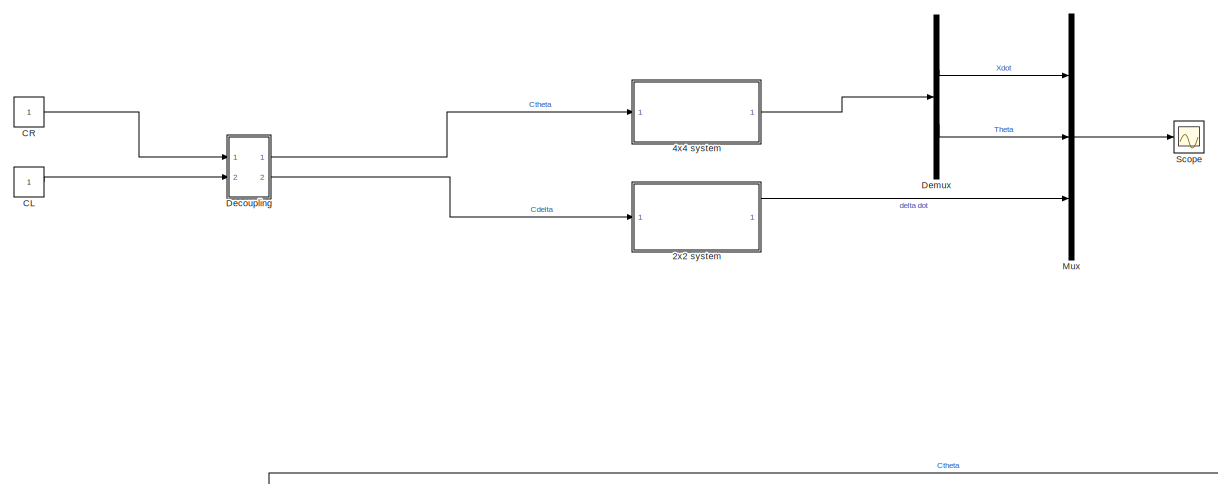
[diagram: root canvas - part 1/5, top left region]
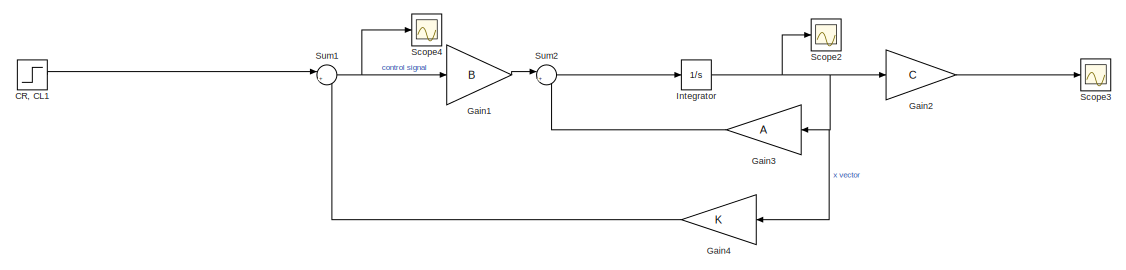
[diagram: root canvas - part 2/5, top right region]
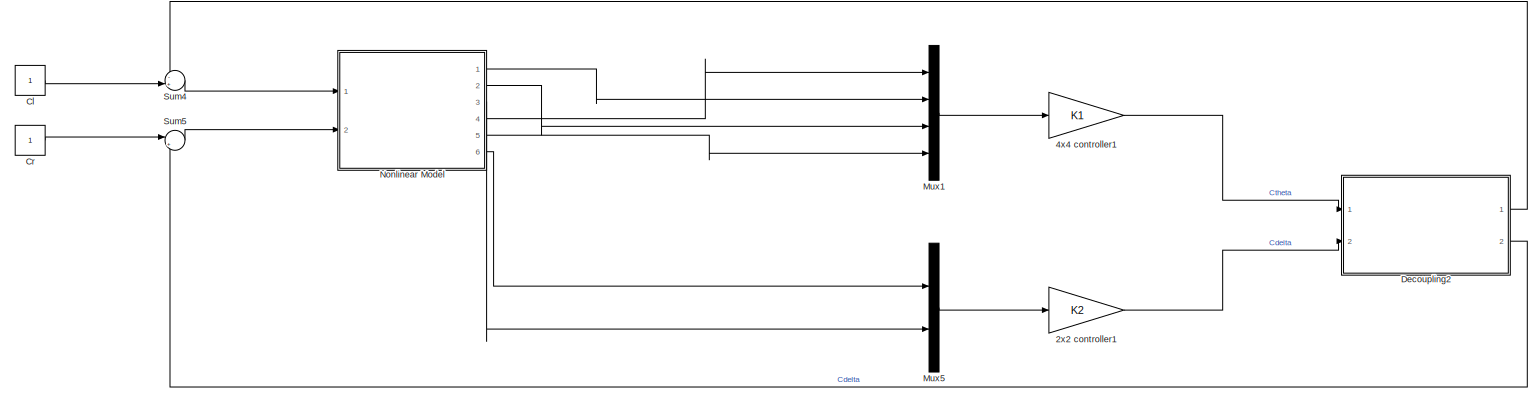
[diagram: root canvas - part 3/5, central region]
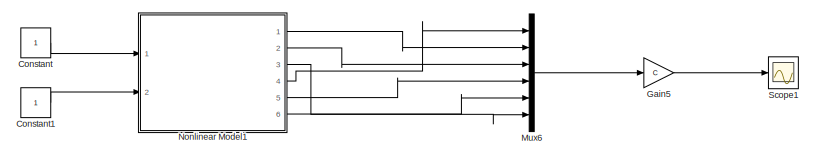
[diagram: root canvas - part 4/5, middle right region]
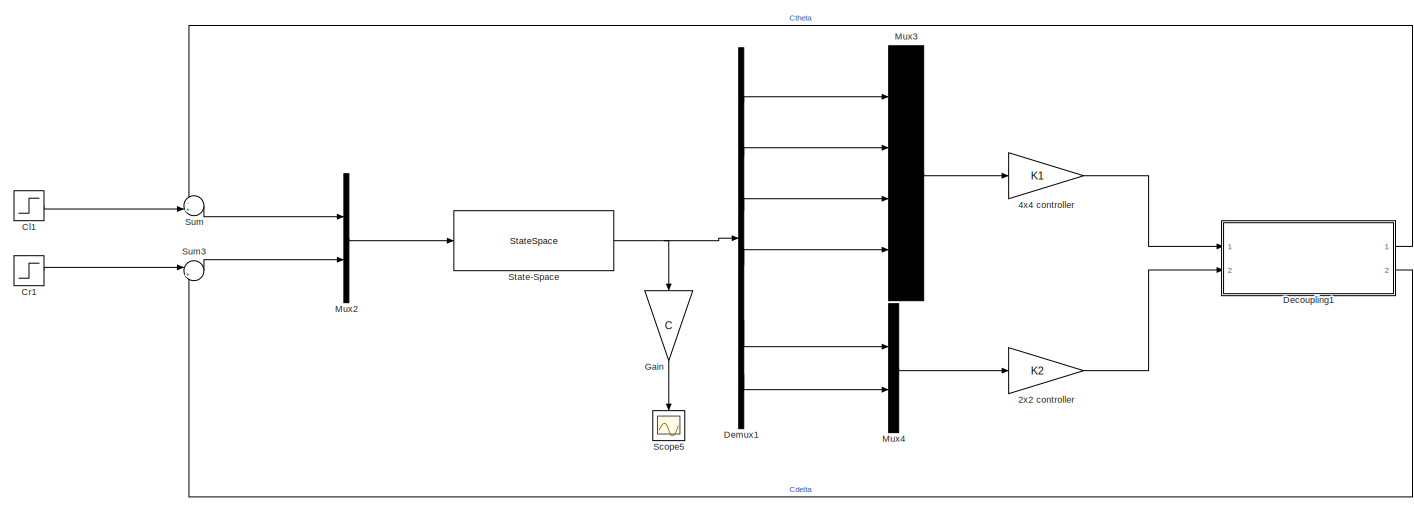
[diagram: root canvas - part 5/5, bottom left region]
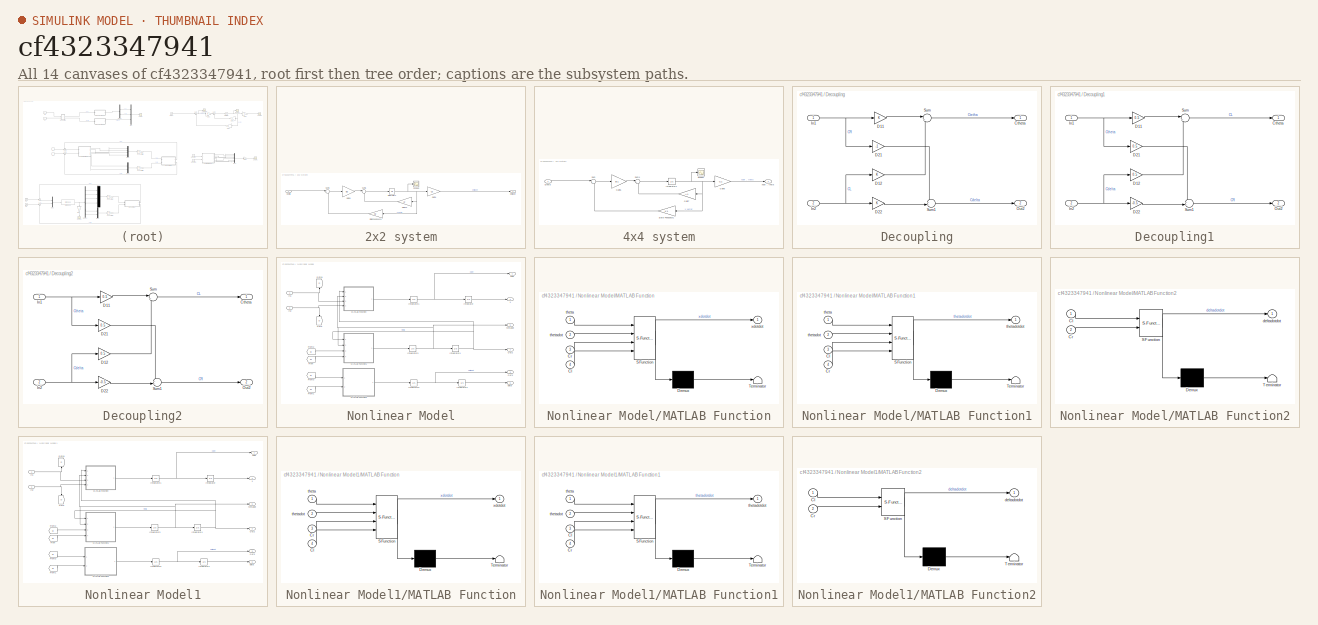
[diagram: thumbnail index - all 14 canvases of the model, root first then tree order]
MODEL slx_cf4323347941
KIND model
CONFIG AbsTol = auto
CONFIG EnableMultiTasking = off
CONFIG FixedStep = auto
CONFIG MaxStep = auto
CONFIG MinStep = auto
CONFIG RelTol = 1e-3
CONFIG SampleTimeConstraint = Unconstrained
CONFIG SolverName = VariableStepAuto
CONFIG StartTime = 0.0
CONFIG StopTime = 3
BLOCK [Gain] 2x2 controller
  Gain = K2
  Multiplication = Matrix(K*u)
BLOCK [Gain] 2x2 controller1
  Gain = K2
  Multiplication = Matrix(K*u)
BLOCK [SubSystem] 2x2 system
  Ports = [1, 1]
  RequestExecContextInheritance = off
BLOCK [Inport] 2x2 system/Cdelta
BLOCK [Gain] 2x2 system/Gain10
  Gain = A2
  Multiplication = Matrix(K*u)
  NameLocation = top
BLOCK [Gain] 2x2 system/Gain8
  Gain = B2
  Multiplication = Matrix(K*u)
BLOCK [Gain] 2x2 system/Gain9
  Gain = C2
  Multiplication = Matrix(K*u)
BLOCK [Integrator] 2x2 system/Integrator2
  InitialCondition = [1; 0]
  Ports = [1, 1]
BLOCK [Scope] 2x2 system/Scope5
  Floating = off
  NumInputPorts = 1
  Ports = [1]
  ScopeSpecificationString = Simulink.scopes.TimeScopeBlockCfg('CurrentConfiguration', extmgr.ConfigurationSet(extmgr.Configuration('Core','General UI',true),extmgr.Configuration('Core','Source UI',true),extmgr.Configuration('Sources','WiredSimulink',true,'DataLoggingVariableName','ScopeData5'),extmgr.Configuration('Visuals','Time Domain',true,'SerializedDisplays',{struct('MinYLimReal','-1.00000','MaxYLimReal','1.00000','YLab...<+1436ch>
BLOCK [Gain] 2x2 system/State Feedback3
  Gain = K2
  Multiplication = Matrix(K*u)
  NameLocation = top
BLOCK [Sum] 2x2 system/Sum3
  Inputs = |+-
  Ports = [2, 1]
BLOCK [Sum] 2x2 system/Sum5
  Inputs = |++
  Ports = [2, 1]
BLOCK [Outport] 2x2 system/delta dot
BLOCK [Gain] 4x4 controller
  Gain = K1
  Multiplication = Matrix(K*u)
BLOCK [Gain] 4x4 controller1
  Gain = K1
  Multiplication = Matrix(K*u)
BLOCK [SubSystem] 4x4 system
  Ports = [1, 1]
  RequestExecContextInheritance = off
BLOCK [Inport] 4x4 system/Ctheta
BLOCK [Gain] 4x4 system/Gain5
  Gain = B1
  Multiplication = Matrix(K*u)
BLOCK [Gain] 4x4 system/Gain6
  Gain = C1
  Multiplication = Matrix(K*u)
BLOCK [Gain] 4x4 system/Gain7
  Gain = A1
  Multiplication = Matrix(K*u)
  NameLocation = top
BLOCK [Integrator] 4x4 system/Integrator1
  InitialCondition = [1;1;1;1]
  Ports = [1, 1]
BLOCK [Scope] 4x4 system/Scope1
  Floating = off
  NumInputPorts = 1
  Ports = [1]
  ScopeSpecificationString = Simulink.scopes.TimeScopeBlockCfg('CurrentConfiguration', extmgr.ConfigurationSet(extmgr.Configuration('Core','General UI',true),extmgr.Configuration('Core','Source UI',true),extmgr.Configuration('Sources','WiredSimulink',true,'DataLoggingVariableName','ScopeData1'),extmgr.Configuration('Visuals','Time Domain',true,'SerializedDisplays',{struct('MinYLimReal','-2641547.07223','MaxYLimReal','23455401...<+1520ch>
BLOCK [Gain] 4x4 system/State Feedback1
  Gain = K1
  Multiplication = Matrix(K*u)
  NameLocation = top
BLOCK [Sum] 4x4 system/Sum
  Inputs = |+-
  Ports = [2, 1]
BLOCK [Sum] 4x4 system/Sum4
  Inputs = |++
  Ports = [2, 1]
BLOCK [Outport] 4x4 system/xdot , theta
BLOCK [Constant] CL
BLOCK [Constant] CR
BLOCK [Step] CR, CL1
  After = [1; 1]
  Before = [0; 0]
  Commented = on
  SampleTime = 0
BLOCK [Constant] Cl
BLOCK [Step] Cl1
  After = 0
  Before = 1
  SampleTime = 0
  Time = 0.01
BLOCK [Constant] Constant
BLOCK [Constant] Constant1
BLOCK [Constant] Cr
BLOCK [Step] Cr1
  After = 0
  Before = 1
  SampleTime = 0
  Time = 0.01
BLOCK [SubSystem] Decoupling
  Ports = [2, 2]
  RequestExecContextInheritance = off
BLOCK [Outport] Decoupling/Ctheta
  IconDisplay = Signal name
BLOCK [Gain] Decoupling/D11
BLOCK [Gain] Decoupling/D12
BLOCK [Gain] Decoupling/D21
  Gain = -1
BLOCK [Gain] Decoupling/D22
BLOCK [Inport] Decoupling/In1
BLOCK [Inport] Decoupling/In2
  Port = 2
BLOCK [Outport] Decoupling/Out2
  IconDisplay = Signal name
  Port = 2
BLOCK [Sum] Decoupling/Sum
  Inputs = |++
  Ports = [2, 1]
BLOCK [Sum] Decoupling/Sum1
  Inputs = ++|
  Ports = [2, 1]
BLOCK [SubSystem] Decoupling1
  Ports = [2, 2]
  RequestExecContextInheritance = off
BLOCK [Outport] Decoupling1/Ctheta
  IconDisplay = Signal name
BLOCK [Gain] Decoupling1/D11
  Gain = 0.5
BLOCK [Gain] Decoupling1/D12
  Gain = 0.5
BLOCK [Gain] Decoupling1/D21
  Gain = 0.5
BLOCK [Gain] Decoupling1/D22
  Gain = -0.5
BLOCK [Inport] Decoupling1/In1
  IconDisplay = Signal name
BLOCK [Inport] Decoupling1/In2
  IconDisplay = Signal name
  Port = 2
BLOCK [Outport] Decoupling1/Out2
  IconDisplay = Signal name
  Port = 2
BLOCK [Sum] Decoupling1/Sum
  Inputs = |++
  Ports = [2, 1]
BLOCK [Sum] Decoupling1/Sum1
  Inputs = ++|
  Ports = [2, 1]
BLOCK [SubSystem] Decoupling2
  Ports = [2, 2]
  RequestExecContextInheritance = off
BLOCK [Outport] Decoupling2/Ctheta
  IconDisplay = Signal name
BLOCK [Gain] Decoupling2/D11
  Gain = 0.5
BLOCK [Gain] Decoupling2/D12
  Gain = 0.5
BLOCK [Gain] Decoupling2/D21
  Gain = 0.5
BLOCK [Gain] Decoupling2/D22
  Gain = -0.5
BLOCK [Inport] Decoupling2/In1
  IconDisplay = Signal name
BLOCK [Inport] Decoupling2/In2
  IconDisplay = Signal name
  Port = 2
BLOCK [Outport] Decoupling2/Out2
  IconDisplay = Signal name
  Port = 2
BLOCK [Sum] Decoupling2/Sum
  Inputs = |++
  Ports = [2, 1]
BLOCK [Sum] Decoupling2/Sum1
  Inputs = ++|
  Ports = [2, 1]
BLOCK [Demux] Demux
  Outputs = 2
  Ports = [1, 2]
BLOCK [Demux] Demux1
  Outputs = 6
  Ports = [1, 6]
BLOCK [Gain] Gain
  Gain = C
  Multiplication = Matrix(K*u)
  NameLocation = left
BLOCK [Gain] Gain1
  Commented = on
  Gain = B
  Multiplication = Matrix(K*u) (u vector)
BLOCK [Gain] Gain2
  Commented = on
  Gain = C
  Multiplication = Matrix(K*u) (u vector)
BLOCK [Gain] Gain3
  Commented = on
  Gain = A
  Multiplication = Matrix(K*u) (u vector)
  NameLocation = top
BLOCK [Gain] Gain4
  Commented = on
  Gain = K
  Multiplication = Matrix(K*u) (u vector)
  NameLocation = top
BLOCK [Gain] Gain5
  Gain = C
  Multiplication = Matrix(K*u)
BLOCK [Integrator] Integrator
  Commented = on
  Ports = [1, 1]
BLOCK [Mux] Mux
  DisplayOption = bar
  Inputs = 3
  Ports = [3, 1]
BLOCK [Mux] Mux1
  DisplayOption = bar
  Ports = [4, 1]
BLOCK [Mux] Mux2
  DisplayOption = bar
  Inputs = 2
  Ports = [2, 1]
BLOCK [Mux] Mux3
  DisplayOption = bar
  Ports = [4, 1]
BLOCK [Mux] Mux4
  DisplayOption = bar
  Inputs = 2
  Ports = [2, 1]
BLOCK [Mux] Mux5
  DisplayOption = bar
  Inputs = 2
  Ports = [2, 1]
BLOCK [Mux] Mux6
  DisplayOption = bar
  Inputs = 6
  Ports = [6, 1]
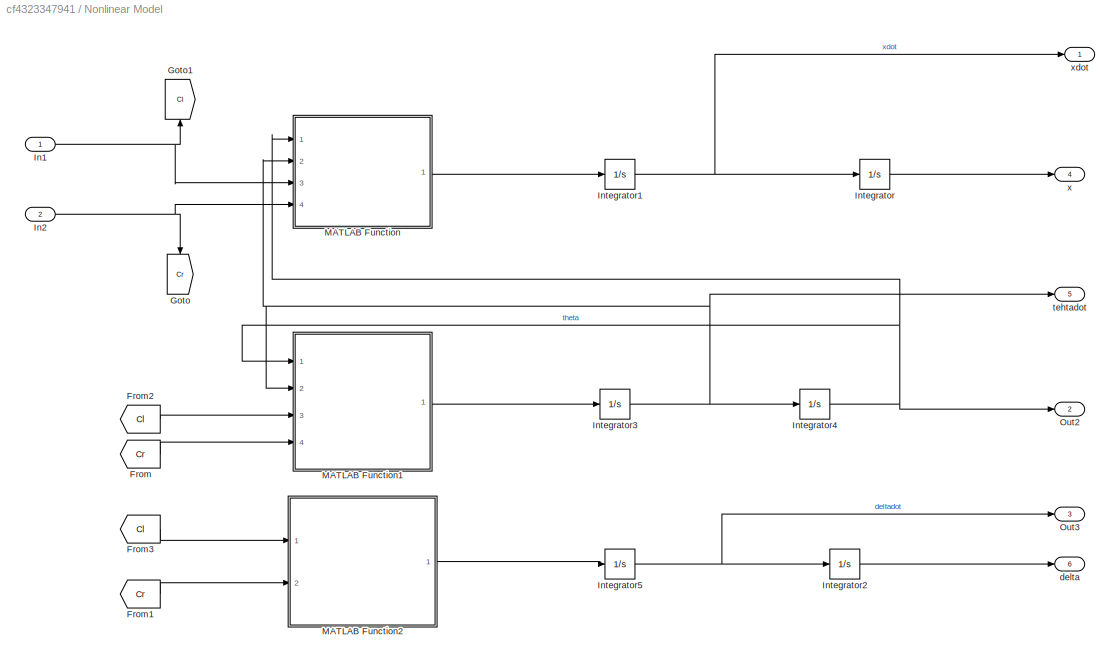
BLOCK [SubSystem] Nonlinear Model
  Ports = [2, 6]
  RequestExecContextInheritance = off
BLOCK [From] Nonlinear Model/From
  GotoTag = Cr
BLOCK [From] Nonlinear Model/From1
  GotoTag = Cr
BLOCK [From] Nonlinear Model/From2
  GotoTag = Cl
BLOCK [From] Nonlinear Model/From3
  GotoTag = Cl
BLOCK [Goto] Nonlinear Model/Goto
  GotoTag = Cr
  IconDisplay = Tag and signal name
  NameLocation = left
BLOCK [Goto] Nonlinear Model/Goto1
  GotoTag = Cl
  NameLocation = right
BLOCK [Inport] Nonlinear Model/In1
BLOCK [Inport] Nonlinear Model/In2
  Port = 2
BLOCK [Integrator] Nonlinear Model/Integrator
  Ports = [1, 1]
BLOCK [Integrator] Nonlinear Model/Integrator1
  Ports = [1, 1]
BLOCK [Integrator] Nonlinear Model/Integrator2
  Ports = [1, 1]
BLOCK [Integrator] Nonlinear Model/Integrator3
  Ports = [1, 1]
BLOCK [Integrator] Nonlinear Model/Integrator4
  Ports = [1, 1]
BLOCK [Integrator] Nonlinear Model/Integrator5
  Ports = [1, 1]
BLOCK [SubSystem] Nonlinear Model/MATLAB Function
  ErrorFcn = Stateflow.Translate.translate
  PermitHierarchicalResolution = ExplicitOnly
  Ports = [4, 1]
  RequestExecContextInheritance = off
  SFBlockType = MATLAB Function
  TreatAsAtomicUnit = on
BLOCK [Demux] Nonlinear Model/MATLAB Function/ Demux 
  Outputs = 1
  Ports = [1, 1]
BLOCK [S-Function] Nonlinear Model/MATLAB Function/ SFunction 
  EnableBusSupport = on
  FunctionName = sf_sfun
  PortCounts = [4 2]
  Ports = [4, 2]
  SFcnIsStateOwnerBlock = off
  SFunctionDeploymentMode = off
  Tag = Stateflow S-Function 2
BLOCK [Terminator] Nonlinear Model/MATLAB Function/ Terminator 
BLOCK [Inport] Nonlinear Model/MATLAB Function/Cl
  Port = 4
BLOCK [Inport] Nonlinear Model/MATLAB Function/Cr
  Port = 3
BLOCK [Inport] Nonlinear Model/MATLAB Function/theta
BLOCK [Inport] Nonlinear Model/MATLAB Function/thetadot
  Port = 2
BLOCK [Outport] Nonlinear Model/MATLAB Function/xdotdot
BLOCK [SubSystem] Nonlinear Model/MATLAB Function1
  ErrorFcn = Stateflow.Translate.translate
  PermitHierarchicalResolution = ExplicitOnly
  Ports = [4, 1]
  RequestExecContextInheritance = off
  SFBlockType = MATLAB Function
  TreatAsAtomicUnit = on
BLOCK [Demux] Nonlinear Model/MATLAB Function1/ Demux 
  Outputs = 1
  Ports = [1, 1]
BLOCK [S-Function] Nonlinear Model/MATLAB Function1/ SFunction 
  EnableBusSupport = on
  FunctionName = sf_sfun
  PortCounts = [4 2]
  Ports = [4, 2]
  SFcnIsStateOwnerBlock = off
  SFunctionDeploymentMode = off
  Tag = Stateflow S-Function 1
BLOCK [Terminator] Nonlinear Model/MATLAB Function1/ Terminator 
BLOCK [Inport] Nonlinear Model/MATLAB Function1/Cl
  Port = 3
BLOCK [Inport] Nonlinear Model/MATLAB Function1/Cr
  Port = 4
BLOCK [Inport] Nonlinear Model/MATLAB Function1/theta
BLOCK [Inport] Nonlinear Model/MATLAB Function1/thetadot
  Port = 2
BLOCK [Outport] Nonlinear Model/MATLAB Function1/thetadotdot
BLOCK [SubSystem] Nonlinear Model/MATLAB Function2
  ErrorFcn = Stateflow.Translate.translate
  PermitHierarchicalResolution = ExplicitOnly
  Ports = [2, 1]
  RequestExecContextInheritance = off
  SFBlockType = MATLAB Function
  TreatAsAtomicUnit = on
BLOCK [Demux] Nonlinear Model/MATLAB Function2/ Demux 
  Outputs = 1
  Ports = [1, 1]
BLOCK [S-Function] Nonlinear Model/MATLAB Function2/ SFunction 
  EnableBusSupport = on
  FunctionName = sf_sfun
  PortCounts = [2 2]
  Ports = [2, 2]
  SFcnIsStateOwnerBlock = off
  SFunctionDeploymentMode = off
  Tag = Stateflow S-Function 3
BLOCK [Terminator] Nonlinear Model/MATLAB Function2/ Terminator 
BLOCK [Inport] Nonlinear Model/MATLAB Function2/Cl
BLOCK [Inport] Nonlinear Model/MATLAB Function2/Cr
  Port = 2
BLOCK [Outport] Nonlinear Model/MATLAB Function2/deltadotdot
BLOCK [Outport] Nonlinear Model/Out2
  IconDisplay = Signal name
  Port = 2
BLOCK [Outport] Nonlinear Model/Out3
  IconDisplay = Signal name
  Port = 3
BLOCK [Outport] Nonlinear Model/delta
  Port = 6
BLOCK [Outport] Nonlinear Model/tehtadot
  Port = 5
BLOCK [Outport] Nonlinear Model/x
  Port = 4
BLOCK [Outport] Nonlinear Model/xdot
  IconDisplay = Signal name
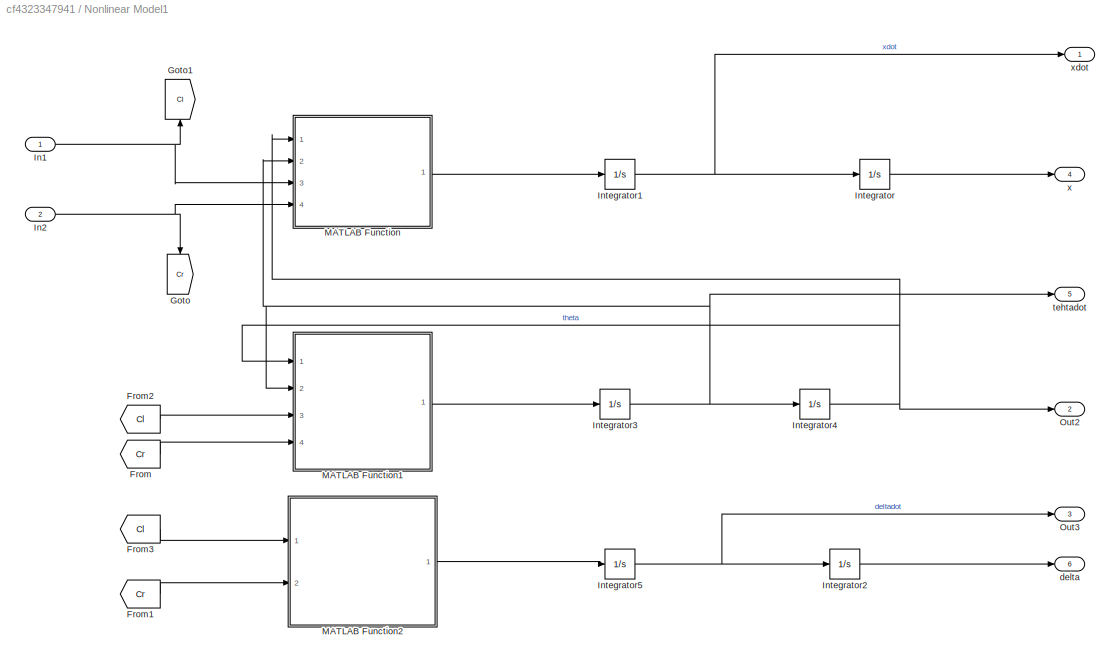
BLOCK [SubSystem] Nonlinear Model1
  Ports = [2, 6]
  RequestExecContextInheritance = off
BLOCK [From] Nonlinear Model1/From
  GotoTag = Cr
BLOCK [From] Nonlinear Model1/From1
  GotoTag = Cr
BLOCK [From] Nonlinear Model1/From2
  GotoTag = Cl
BLOCK [From] Nonlinear Model1/From3
  GotoTag = Cl
BLOCK [Goto] Nonlinear Model1/Goto
  GotoTag = Cr
  IconDisplay = Tag and signal name
  NameLocation = left
BLOCK [Goto] Nonlinear Model1/Goto1
  GotoTag = Cl
  NameLocation = right
BLOCK [Inport] Nonlinear Model1/In1
BLOCK [Inport] Nonlinear Model1/In2
  Port = 2
BLOCK [Integrator] Nonlinear Model1/Integrator
  Ports = [1, 1]
BLOCK [Integrator] Nonlinear Model1/Integrator1
  Ports = [1, 1]
BLOCK [Integrator] Nonlinear Model1/Integrator2
  Ports = [1, 1]
BLOCK [Integrator] Nonlinear Model1/Integrator3
  Ports = [1, 1]
BLOCK [Integrator] Nonlinear Model1/Integrator4
  Ports = [1, 1]
BLOCK [Integrator] Nonlinear Model1/Integrator5
  Ports = [1, 1]
BLOCK [SubSystem] Nonlinear Model1/MATLAB Function
  ErrorFcn = Stateflow.Translate.translate
  PermitHierarchicalResolution = ExplicitOnly
  Ports = [4, 1]
  RequestExecContextInheritance = off
  SFBlockType = MATLAB Function
  TreatAsAtomicUnit = on
BLOCK [Demux] Nonlinear Model1/MATLAB Function/ Demux 
  Outputs = 1
  Ports = [1, 1]
BLOCK [S-Function] Nonlinear Model1/MATLAB Function/ SFunction 
  EnableBusSupport = on
  FunctionName = sf_sfun
  PortCounts = [4 2]
  Ports = [4, 2]
  SFcnIsStateOwnerBlock = off
  SFunctionDeploymentMode = off
  Tag = Stateflow S-Function 4
BLOCK [Terminator] Nonlinear Model1/MATLAB Function/ Terminator 
BLOCK [Inport] Nonlinear Model1/MATLAB Function/Cl
  Port = 4
BLOCK [Inport] Nonlinear Model1/MATLAB Function/Cr
  Port = 3
BLOCK [Inport] Nonlinear Model1/MATLAB Function/theta
BLOCK [Inport] Nonlinear Model1/MATLAB Function/thetadot
  Port = 2
BLOCK [Outport] Nonlinear Model1/MATLAB Function/xdotdot
BLOCK [SubSystem] Nonlinear Model1/MATLAB Function1
  ErrorFcn = Stateflow.Translate.translate
  PermitHierarchicalResolution = ExplicitOnly
  Ports = [4, 1]
  RequestExecContextInheritance = off
  SFBlockType = MATLAB Function
  TreatAsAtomicUnit = on
BLOCK [Demux] Nonlinear Model1/MATLAB Function1/ Demux 
  Outputs = 1
  Ports = [1, 1]
BLOCK [S-Function] Nonlinear Model1/MATLAB Function1/ SFunction 
  EnableBusSupport = on
  FunctionName = sf_sfun
  PortCounts = [4 2]
  Ports = [4, 2]
  SFcnIsStateOwnerBlock = off
  SFunctionDeploymentMode = off
  Tag = Stateflow S-Function 5
BLOCK [Terminator] Nonlinear Model1/MATLAB Function1/ Terminator 
BLOCK [Inport] Nonlinear Model1/MATLAB Function1/Cl
  Port = 3
BLOCK [Inport] Nonlinear Model1/MATLAB Function1/Cr
  Port = 4
BLOCK [Inport] Nonlinear Model1/MATLAB Function1/theta
BLOCK [Inport] Nonlinear Model1/MATLAB Function1/thetadot
  Port = 2
BLOCK [Outport] Nonlinear Model1/MATLAB Function1/thetadotdot
BLOCK [SubSystem] Nonlinear Model1/MATLAB Function2
  ErrorFcn = Stateflow.Translate.translate
  PermitHierarchicalResolution = ExplicitOnly
  Ports = [2, 1]
  RequestExecContextInheritance = off
  SFBlockType = MATLAB Function
  TreatAsAtomicUnit = on
BLOCK [Demux] Nonlinear Model1/MATLAB Function2/ Demux 
  Outputs = 1
  Ports = [1, 1]
BLOCK [S-Function] Nonlinear Model1/MATLAB Function2/ SFunction 
  EnableBusSupport = on
  FunctionName = sf_sfun
  PortCounts = [2 2]
  Ports = [2, 2]
  SFcnIsStateOwnerBlock = off
  SFunctionDeploymentMode = off
  Tag = Stateflow S-Function 6
BLOCK [Terminator] Nonlinear Model1/MATLAB Function2/ Terminator 
BLOCK [Inport] Nonlinear Model1/MATLAB Function2/Cl
BLOCK [Inport] Nonlinear Model1/MATLAB Function2/Cr
  Port = 2
BLOCK [Outport] Nonlinear Model1/MATLAB Function2/deltadotdot
BLOCK [Outport] Nonlinear Model1/Out2
  IconDisplay = Signal name
  Port = 2
BLOCK [Outport] Nonlinear Model1/Out3
  IconDisplay = Signal name
  Port = 3
BLOCK [Outport] Nonlinear Model1/delta
  Port = 6
BLOCK [Outport] Nonlinear Model1/tehtadot
  Port = 5
BLOCK [Outport] Nonlinear Model1/x
  Port = 4
BLOCK [Outport] Nonlinear Model1/xdot
  IconDisplay = Signal name
BLOCK [Scope] Scope
  Floating = off
  NumInputPorts = 1
  Ports = [1]
  ScopeSpecificationString = Simulink.scopes.TimeScopeBlockCfg('CurrentConfiguration', extmgr.ConfigurationSet(extmgr.Configuration('Core','General UI',true),extmgr.Configuration('Core','Source UI',true),extmgr.Configuration('Sources','WiredSimulink',true),extmgr.Configuration('Visuals','Time Domain',true,'SerializedDisplays',{struct('MinYLimReal','-1.2422','MaxYLimReal','2.66612','YLabelReal','','MinYLimMag','0.00000','MaxYL...<+1515ch>
BLOCK [Scope] Scope1
  Floating = off
  NumInputPorts = 1
  Ports = [1]
  ScopeSpecificationString = Simulink.scopes.TimeScopeBlockCfg('CurrentConfiguration', extmgr.ConfigurationSet(extmgr.Configuration('Core','General UI',true),extmgr.Configuration('Core','Source UI',true),extmgr.Configuration('Sources','WiredSimulink',true,'DataLoggingVariableName','ScopeData4'),extmgr.Configuration('Visuals','Time Domain',true,'SerializedDisplays',{struct('MinYLimReal','-0.10102','MaxYLimReal','0.90916','YLab...<+1445ch>
BLOCK [Scope] Scope2
  Commented = on
  Floating = off
  NumInputPorts = 1
  Ports = [1]
  ScopeSpecificationString = Simulink.scopes.TimeScopeBlockCfg('CurrentConfiguration', extmgr.ConfigurationSet(extmgr.Configuration('Core','General UI',true),extmgr.Configuration('Core','Source UI',true),extmgr.Configuration('Sources','WiredSimulink',true,'DataLoggingVariableName','ScopeData1'),extmgr.Configuration('Visuals','Time Domain',true,'SerializedDisplays',{struct('MinYLimReal','-0.03356','MaxYLimReal','0.07873','YLab...<+1449ch>
BLOCK [Scope] Scope3
  Commented = on
  Floating = off
  NumInputPorts = 1
  Ports = [1]
  ScopeSpecificationString = Simulink.scopes.TimeScopeBlockCfg('CurrentConfiguration', extmgr.ConfigurationSet(extmgr.Configuration('Core','General UI',true),extmgr.Configuration('Core','Source UI',true),extmgr.Configuration('Sources','WiredSimulink',true,'DataLoggingVariableName','ScopeData2'),extmgr.Configuration('Visuals','Time Domain',true,'SerializedDisplays',{struct('MinYLimReal','-0.0134','MaxYLimReal','0.12064','YLabe...<+1691ch>
BLOCK [Scope] Scope4
  Commented = on
  Floating = off
  NumInputPorts = 1
  Ports = [1]
  ScopeSpecificationString = Simulink.scopes.TimeScopeBlockCfg('CurrentConfiguration', extmgr.ConfigurationSet(extmgr.Configuration('Core','General UI',true),extmgr.Configuration('Core','Source UI',true),extmgr.Configuration('Sources','WiredSimulink',true,'DataLoggingVariableName','ScopeData3'),extmgr.Configuration('Visuals','Time Domain',true,'SerializedDisplays',{struct('MinYLimReal','-0.125','MaxYLimReal','1.125','YLabelRe...<+1361ch>
BLOCK [Scope] Scope5
  Floating = off
  NameLocation = left
  NumInputPorts = 1
  Ports = [1]
  ScopeSpecificationString = Simulink.scopes.TimeScopeBlockCfg('CurrentConfiguration', extmgr.ConfigurationSet(extmgr.Configuration('Core','General UI',true),extmgr.Configuration('Core','Source UI',true),extmgr.Configuration('Sources','WiredSimulink',true,'DataLoggingVariableName','ScopeData5'),extmgr.Configuration('Visuals','Time Domain',true,'SerializedDisplays',{struct('MinYLimReal','-0.0101','MaxYLimReal','0.02008','YLabe...<+1406ch>
BLOCK [StateSpace] State-Space
  A = A
  B = B
  C = eye(6)
  D = zeros(6, 2)
  InitialCondition = 0
  Ports = [1, 1]
BLOCK [Sum] Sum
  Inputs = -+|
  Ports = [2, 1]
BLOCK [Sum] Sum1
  Commented = on
  Inputs = |+-
  Ports = [2, 1]
BLOCK [Sum] Sum2
  Commented = on
  Inputs = |++
  Ports = [2, 1]
BLOCK [Sum] Sum3
  Inputs = |+-
  Ports = [2, 1]
BLOCK [Sum] Sum4
  Inputs = -+|
  Ports = [2, 1]
BLOCK [Sum] Sum5
  Inputs = |+-
  Ports = [2, 1]
LINE 2x2 controller1:1 -> Decoupling2:2
LINE 2x2 controller:1 -> Decoupling1:2
LINE 2x2 system/Cdelta:1 -> 2x2 system/Sum3:1
LINE 2x2 system/Gain10:1 -> 2x2 system/Sum5:2
LINE 2x2 system/Gain8:1 -> 2x2 system/Sum5:1
LINE 2x2 system/Gain9:1 -> 2x2 system/delta dot:1
NET 2x2 system/Integrator2:1 -> 2x2 system/Gain10:1, 2x2 system/Gain9:1, 2x2 system/Scope5:1, 2x2 system/State Feedback3:1
LINE 2x2 system/State Feedback3:1 -> 2x2 system/Sum3:2
LINE 2x2 system/Sum3:1 -> 2x2 system/Gain8:1
LINE 2x2 system/Sum5:1 -> 2x2 system/Integrator2:1
LINE 2x2 system:1 -> Mux:3
LINE 4x4 controller1:1 -> Decoupling2:1
LINE 4x4 controller:1 -> Decoupling1:1
LINE 4x4 system/Ctheta:1 -> 4x4 system/Sum:1
LINE 4x4 system/Gain5:1 -> 4x4 system/Sum4:1
LINE 4x4 system/Gain6:1 -> 4x4 system/xdot , theta:1
LINE 4x4 system/Gain7:1 -> 4x4 system/Sum4:2
NET 4x4 system/Integrator1:1 -> 4x4 system/Gain6:1, 4x4 system/Gain7:1, 4x4 system/Scope1:1, 4x4 system/State Feedback1:1
LINE 4x4 system/State Feedback1:1 -> 4x4 system/Sum:2
LINE 4x4 system/Sum4:1 -> 4x4 system/Integrator1:1
LINE 4x4 system/Sum:1 -> 4x4 system/Gain5:1
LINE 4x4 system:1 -> Demux:1
LINE CL:1 -> Decoupling:2
LINE CR, CL1:1 -> Sum1:1
LINE CR:1 -> Decoupling:1
LINE Cl1:1 -> Sum:2
LINE Cl:1 -> Sum4:2
LINE Constant1:1 -> Nonlinear Model1:2
LINE Constant:1 -> Nonlinear Model1:1
LINE Cr1:1 -> Sum3:1
LINE Cr:1 -> Sum5:1
LINE Decoupling/D11:1 -> Decoupling/Sum:1
LINE Decoupling/D12:1 -> Decoupling/Sum:2
LINE Decoupling/D21:1 -> Decoupling/Sum1:1
LINE Decoupling/D22:1 -> Decoupling/Sum1:2
NET Decoupling/In1:1 -> Decoupling/D11:1, Decoupling/D21:1
NET Decoupling/In2:1 -> Decoupling/D12:1, Decoupling/D22:1
LINE Decoupling/Sum1:1 -> Decoupling/Out2:1
LINE Decoupling/Sum:1 -> Decoupling/Ctheta:1
LINE Decoupling1/D11:1 -> Decoupling1/Sum:1
LINE Decoupling1/D12:1 -> Decoupling1/Sum:2
LINE Decoupling1/D21:1 -> Decoupling1/Sum1:1
LINE Decoupling1/D22:1 -> Decoupling1/Sum1:2
NET Decoupling1/In1:1 -> Decoupling1/D11:1, Decoupling1/D21:1
NET Decoupling1/In2:1 -> Decoupling1/D12:1, Decoupling1/D22:1
LINE Decoupling1/Sum1:1 -> Decoupling1/Out2:1
LINE Decoupling1/Sum:1 -> Decoupling1/Ctheta:1
LINE Decoupling1:1 -> Sum:1
LINE Decoupling1:2 -> Sum3:2
LINE Decoupling2/D11:1 -> Decoupling2/Sum:1
LINE Decoupling2/D12:1 -> Decoupling2/Sum:2
LINE Decoupling2/D21:1 -> Decoupling2/Sum1:1
LINE Decoupling2/D22:1 -> Decoupling2/Sum1:2
NET Decoupling2/In1:1 -> Decoupling2/D11:1, Decoupling2/D21:1
NET Decoupling2/In2:1 -> Decoupling2/D12:1, Decoupling2/D22:1
LINE Decoupling2/Sum1:1 -> Decoupling2/Out2:1
LINE Decoupling2/Sum:1 -> Decoupling2/Ctheta:1
LINE Decoupling2:1 -> Sum4:1
LINE Decoupling2:2 -> Sum5:2
LINE Decoupling:1 -> 4x4 system:1
LINE Decoupling:2 -> 2x2 system:1
LINE Demux1:1 -> Mux3:1
LINE Demux1:2 -> Mux3:2
LINE Demux1:3 -> Mux3:3
LINE Demux1:4 -> Mux3:4
LINE Demux1:5 -> Mux4:1
LINE Demux1:6 -> Mux4:2
LINE Demux:1 -> Mux:1
LINE Demux:2 -> Mux:2
LINE Gain1:1 -> Sum2:1
LINE Gain2:1 -> Scope3:1
LINE Gain3:1 -> Sum2:2
LINE Gain4:1 -> Sum1:2
LINE Gain5:1 -> Scope1:1
LINE Gain:1 -> Scope5:1
NET Integrator:1 -> Gain2:1, Gain3:1, Gain4:1, Scope2:1
LINE Mux1:1 -> 4x4 controller1:1
LINE Mux2:1 -> State-Space:1
LINE Mux3:1 -> 4x4 controller:1
LINE Mux4:1 -> 2x2 controller:1
LINE Mux5:1 -> 2x2 controller1:1
LINE Mux6:1 -> Gain5:1
LINE Mux:1 -> Scope:1
LINE Nonlinear Model/From1:1 -> Nonlinear Model/MATLAB Function2:2
LINE Nonlinear Model/From2:1 -> Nonlinear Model/MATLAB Function1:3
LINE Nonlinear Model/From3:1 -> Nonlinear Model/MATLAB Function2:1
LINE Nonlinear Model/From:1 -> Nonlinear Model/MATLAB Function1:4
NET Nonlinear Model/In1:1 -> Nonlinear Model/Goto1:1, Nonlinear Model/MATLAB Function:3
NET Nonlinear Model/In2:1 -> Nonlinear Model/Goto:1, Nonlinear Model/MATLAB Function:4
NET Nonlinear Model/Integrator1:1 -> Nonlinear Model/Integrator:1, Nonlinear Model/xdot:1
LINE Nonlinear Model/Integrator2:1 -> Nonlinear Model/delta:1
NET Nonlinear Model/Integrator3:1 -> Nonlinear Model/Integrator4:1, Nonlinear Model/MATLAB Function1:2, Nonlinear Model/MATLAB Function:2, Nonlinear Model/tehtadot:1
NET Nonlinear Model/Integrator4:1 -> Nonlinear Model/MATLAB Function1:1, Nonlinear Model/MATLAB Function:1, Nonlinear Model/Out2:1
NET Nonlinear Model/Integrator5:1 -> Nonlinear Model/Integrator2:1, Nonlinear Model/Out3:1
LINE Nonlinear Model/Integrator:1 -> Nonlinear Model/x:1
LINE Nonlinear Model/MATLAB Function1:1 -> Nonlinear Model/Integrator3:1
LINE Nonlinear Model/MATLAB Function2:1 -> Nonlinear Model/Integrator5:1
LINE Nonlinear Model/MATLAB Function:1 -> Nonlinear Model/Integrator1:1
LINE Nonlinear Model1/From1:1 -> Nonlinear Model1/MATLAB Function2:2
LINE Nonlinear Model1/From2:1 -> Nonlinear Model1/MATLAB Function1:3
LINE Nonlinear Model1/From3:1 -> Nonlinear Model1/MATLAB Function2:1
LINE Nonlinear Model1/From:1 -> Nonlinear Model1/MATLAB Function1:4
NET Nonlinear Model1/In1:1 -> Nonlinear Model1/Goto1:1, Nonlinear Model1/MATLAB Function:3
NET Nonlinear Model1/In2:1 -> Nonlinear Model1/Goto:1, Nonlinear Model1/MATLAB Function:4
NET Nonlinear Model1/Integrator1:1 -> Nonlinear Model1/Integrator:1, Nonlinear Model1/xdot:1
LINE Nonlinear Model1/Integrator2:1 -> Nonlinear Model1/delta:1
NET Nonlinear Model1/Integrator3:1 -> Nonlinear Model1/Integrator4:1, Nonlinear Model1/MATLAB Function1:2, Nonlinear Model1/MATLAB Function:2, Nonlinear Model1/tehtadot:1
NET Nonlinear Model1/Integrator4:1 -> Nonlinear Model1/MATLAB Function1:1, Nonlinear Model1/MATLAB Function:1, Nonlinear Model1/Out2:1
NET Nonlinear Model1/Integrator5:1 -> Nonlinear Model1/Integrator2:1, Nonlinear Model1/Out3:1
LINE Nonlinear Model1/Integrator:1 -> Nonlinear Model1/x:1
LINE Nonlinear Model1/MATLAB Function1:1 -> Nonlinear Model1/Integrator3:1
LINE Nonlinear Model1/MATLAB Function2:1 -> Nonlinear Model1/Integrator5:1
LINE Nonlinear Model1/MATLAB Function:1 -> Nonlinear Model1/Integrator1:1
LINE Nonlinear Model1:1 -> Mux6:2
LINE Nonlinear Model1:2 -> Mux6:3
LINE Nonlinear Model1:3 -> Mux6:6
LINE Nonlinear Model1:4 -> Mux6:1
LINE Nonlinear Model1:5 -> Mux6:4
LINE Nonlinear Model1:6 -> Mux6:5
LINE Nonlinear Model:1 -> Mux1:2
LINE Nonlinear Model:2 -> Mux1:3
LINE Nonlinear Model:3 -> Mux5:2
LINE Nonlinear Model:4 -> Mux1:1
LINE Nonlinear Model:5 -> Mux1:4
LINE Nonlinear Model:6 -> Mux5:1
NET State-Space:1 -> Demux1:1, Gain:1
NET Sum1:1 -> Gain1:1, Scope4:1
LINE Sum2:1 -> Integrator:1
LINE Sum3:1 -> Mux2:2
LINE Sum4:1 -> Nonlinear Model:1
LINE Sum5:1 -> Nonlinear Model:2
LINE Sum:1 -> Mux2:1
note: NET lines group one-source signal fan-out (src -> all destinations, sorted); 1:1 wires keep LINE
CHART Nonlinear Model/MATLAB Function1 states=1 transitions=1
  STATE_LABEL 'eML_blk_kernel()'
  STATE_LABEL 'SCRIPT:\nfunction thetadotdot  = fcn(theta,thetadot,Cl,Cr)\nmp = 20;\nmw = 6;\nl = 0.2;\njpy = 1.33;\nr = 0.2;\nd = 0.5;\njp = 0.27;\njw = 0.12;\ng = 9.82;\nfrr = 0;\nfrl = 0;\nfp = 0;\nthetadotdot = -1/(jp*(2*(jw/r^2+mw)+mp)+2*(jw/r^2+mw)*mp*l^2+mp^2*l^2*sin(theta)^2)*(mp^2*l^2*sin(theta)*cos(theta)*thetadot^2+(2*(jw/r^2+mw)+mp)*mp*g*l*sin(theta)-(mp*l*cos(theta)/r+2*(jw/r^2+mw)+mp)*(Cr+Cl)-mp*l*cos(theta)*(fr...<+39ch>'
CHART Nonlinear Model/MATLAB Function states=1 transitions=1
  STATE_LABEL 'eML_blk_kernel()'
  STATE_LABEL 'SCRIPT:\nfunction xdotdot = fcn(theta,thetadot,Cr,Cl)\n\nmp = 20;\nmw = 6;\nl = 0.2;\njpy = 1.33;\nr = 0.2;\nd = 0.5;\njp = 0.27;\njw = 0.12;\ng = 9.82;\nfrr = 0;\nfrl = 0;\n\n\nxdotdot = 1/(jp*(2*(jw/r^2+mw)+mp)+2*(jw/r^2+mw)*mp*l^2+mp^2*l^2*sin(theta)^2)*((jp+mp*l^2)*mp*l*sin(theta)*cos(theta)*thetadot^2-mp^2*l^2*g*cos(theta)*sin(theta)+(1/r*(jp+mp*l^2)+mp*l*cos(theta))*(Cr+Cl)+(jp+mp*l^2*(frr+frl)));\n'
CHART Nonlinear Model/MATLAB Function2 states=1 transitions=1
  STATE_LABEL 'eML_blk_kernel()'
  STATE_LABEL 'SCRIPT:\nfunction deltadotdot = fcn(Cl, Cr)\nmp = 20;\nmw = 6;\nl = 0.2;\njpy = 1.33;\nr = 0.2;\nd = 0.5;\njp = 0.27;\njw = 0.12;\ng = 9.82;\nfr = 0;\nfl = 0;\n\ndeltadotdot = ((Cl-Cr)/r+(fl-fr))/(2*jp*mw+jw*d/r^2);\n'
CHART Nonlinear Model1/MATLAB Function states=1 transitions=1
  STATE_LABEL 'eML_blk_kernel()'
  STATE_LABEL 'SCRIPT:\nfunction xdotdot = fcn(theta,thetadot,Cr,Cl)\n\nmp = 20;\nmw = 6;\nl = 0.2;\njpy = 1.33;\nr = 0.2;\nd = 0.5;\njp = 0.27;\njw = 0.12;\ng = 9.82;\nfrr = 0;\nfrl = 0;\n\n\nxdotdot = 1/(jp*(2*(jw/r^2+mw)+mp)+2*(jw/r^2+mw)*mp*l^2+mp^2*l^2*sin(theta)^2)*((jp+mp*l^2)*mp*l*sin(theta)*cos(theta)*thetadot^2-mp^2*l^2*g*cos(theta)*sin(theta)+(1/r*(jp+mp*l^2)+mp*l*cos(theta))*(Cr+Cl)+(jp+mp*l^2*(frr+frl)));\n'
CHART Nonlinear Model1/MATLAB Function1 states=1 transitions=1
  STATE_LABEL 'eML_blk_kernel()'
  STATE_LABEL 'SCRIPT:\nfunction thetadotdot  = fcn(theta,thetadot,Cl,Cr)\nmp = 20;\nmw = 6;\nl = 0.2;\njpy = 1.33;\nr = 0.2;\nd = 0.5;\njp = 0.27;\njw = 0.12;\ng = 9.82;\nfrr = 0;\nfrl = 0;\nfp = 0;\nthetadotdot = -1/(jp*(2*(jw/r^2+mw)+mp)+2*(jw/r^2+mw)*mp*l^2+mp^2*l^2*sin(theta)^2)*(mp^2*l^2*sin(theta)*cos(theta)*thetadot^2+(2*(jw/r^2+mw)+mp)*mp*g*l*sin(theta)-(mp*l*cos(theta)/r+2*(jw/r^2+mw)+mp)*(Cr+Cl)-mp*l*cos(theta)*(fr...<+39ch>'
CHART Nonlinear Model1/MATLAB Function2 states=1 transitions=1
  STATE_LABEL 'eML_blk_kernel()'
  STATE_LABEL 'SCRIPT:\nfunction deltadotdot = fcn(Cl, Cr)\nmp = 20;\nmw = 6;\nl = 0.2;\njpy = 1.33;\nr = 0.2;\nd = 0.5;\njp = 0.27;\njw = 0.12;\ng = 9.82;\nfr = 0;\nfl = 0;\n\ndeltadotdot = ((Cl-Cr)/r+(fl-fr))/(2*jp*mw+jw*d/r^2);\n'
CHART  states=0 transitions=0
CHART  states=0 transitions=0
CHART  states=0 transitions=0
CHART  states=0 transitions=0
CHART  states=0 transitions=0
CHART  states=0 transitions=0
